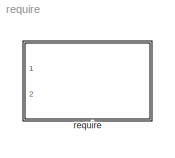
MODEL require
KIND library
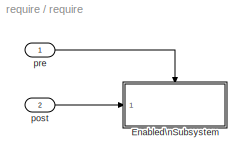
BLOCK [SubSystem] require
  FunctionWithSeparateData = off
  MaskHideContents = off
  MinAlgLoopOccurrences = off
  Opaque = off
  Ports = [2]
  PropExecContextOutsideSubsystem = off
  RTWSystemCode = Reusable function
  RequestExecContextInheritance = off
  SID = 1
  TreatAsAtomicUnit = on
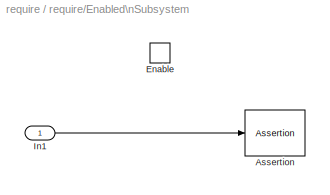
BLOCK [SubSystem] require/Enabled\nSubsystem
  FunctionWithSeparateData = off
  MaskHideContents = off
  MinAlgLoopOccurrences = off
  Opaque = off
  Ports = [1, 0, 1]
  PropExecContextOutsideSubsystem = off
  RTWSystemCode = Auto
  RequestExecContextInheritance = off
  SID = 4
  TreatAsAtomicUnit = on
BLOCK [Assertion] require/Enabled\nSubsystem/Assertion
  SID = 7
  StopWhenAssertionFail = off
BLOCK [EnablePort] require/Enabled\nSubsystem/Enable
  Ports = []
  SID = 6
BLOCK [Inport] require/Enabled\nSubsystem/In1
  IconDisplay = Port number
  SID = 5
BLOCK [Inport] require/post
  IconDisplay = Port number
  Port = 2
  SID = 3
BLOCK [Inport] require/pre
  IconDisplay = Port number
  SID = 2
LINE require/Enabled\nSubsystem/In1:1 -> require/Enabled\nSubsystem/Assertion:1
LINE require/post:1 -> require/Enabled\nSubsystem:1
LINE require/pre:1 -> require/Enabled\nSubsystem:enable
